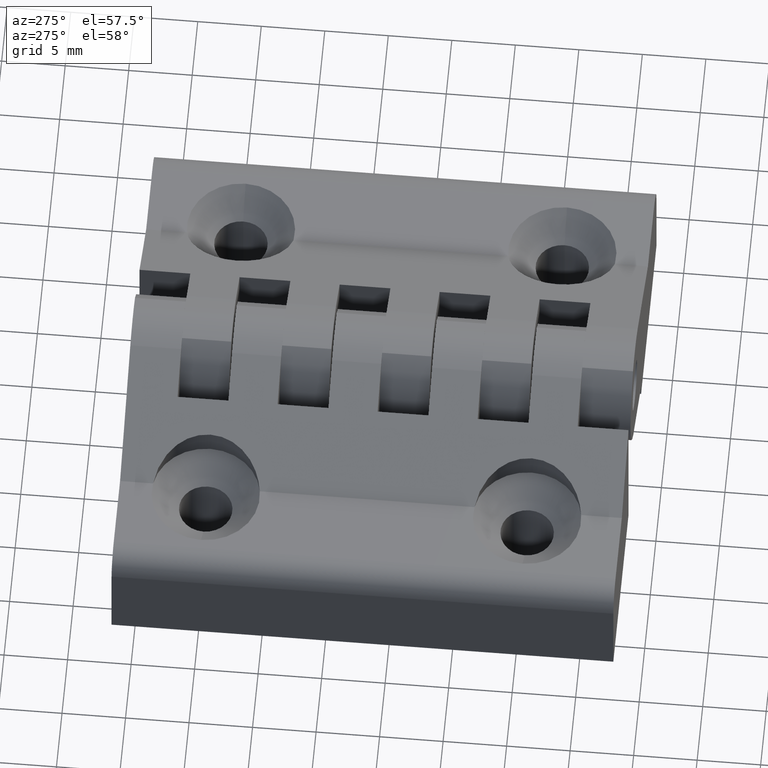
[diagram: clean part render]
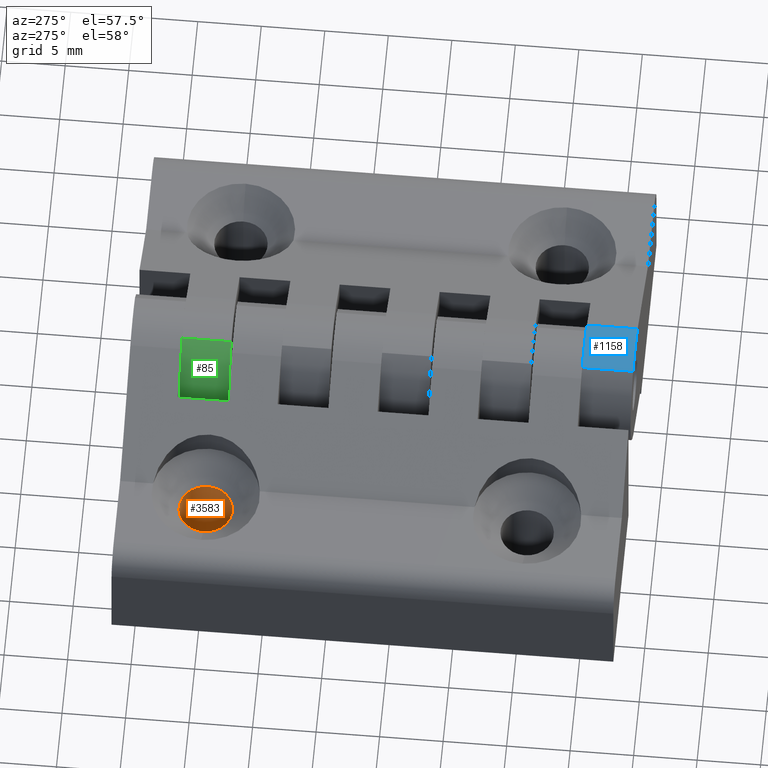
[diagram: same view with three faces highlighted in distinct colors, each labeled with its STEP entity id]
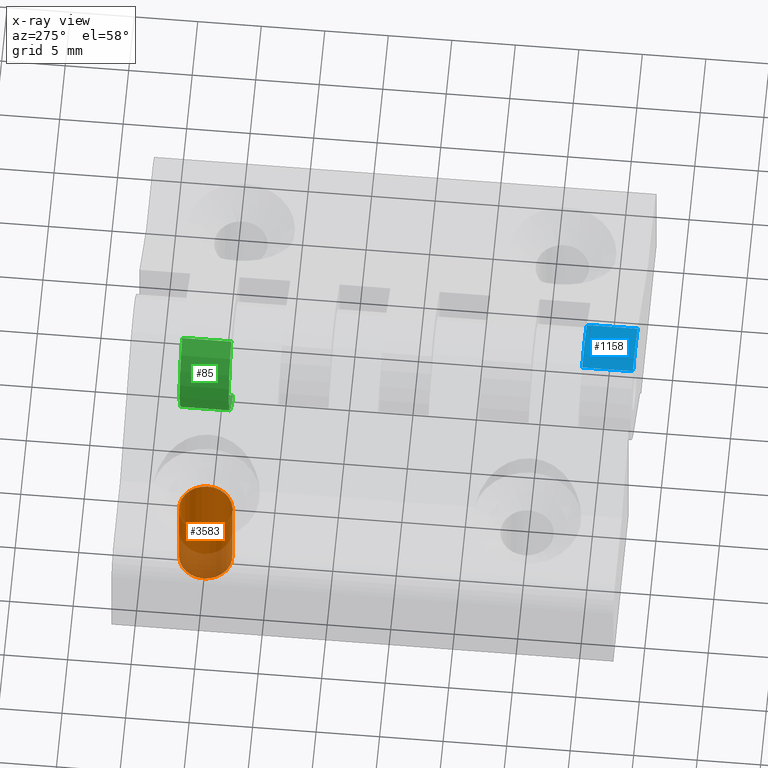
[diagram: x-ray of the same camera — body ghosted, the three highlighted faces saturated]
A machine part, auxiliary view with three faces highlighted in distinct colors.
The next image is the same camera in x-ray (body ghosted, the three faces saturated) — at least one of them is partly hidden behind the body in this view.
Their STEP definitions:

[orange] entity #3583 — the highlighted cylindrical surface (bore or boss wall) has radius 2.1 mm, axis along (0, -0, -1).
#2574=CARTESIAN_POINT('',(-2.099999999991582,0.0,0.0));
#2575=VERTEX_POINT('',#2574);
#2576=CARTESIAN_POINT('',(2.099999999991582,-2.571758E-016,1.574748E-032));
#2577=VERTEX_POINT('',#2576);
#2578=CARTESIAN_POINT('',(0.0,0.0,0.0));
#2579=DIRECTION('',(0.0,6.123234E-017,1.0));
#2580=DIRECTION('',(-1.0,1.224647E-016,-7.498799E-033));
#2581=AXIS2_PLACEMENT_3D('',#2578,#2579,#2580);
#2582=CIRCLE('',#2581,2.099999999991582);
#2583=EDGE_CURVE('',#2575,#2577,#2582,.T.);
#2585=CARTESIAN_POINT('',(0.0,0.0,0.0));
#2586=DIRECTION('',(0.0,6.123234E-017,1.0));
#2587=DIRECTION('',(-1.0,1.224647E-016,-7.498799E-033));
#2588=AXIS2_PLACEMENT_3D('',#2585,#2586,#2587);
#2589=CIRCLE('',#2588,2.099999999991582);
#2590=EDGE_CURVE('',#2577,#2575,#2589,.T.);
#3549=CARTESIAN_POINT('',(0.0,-1.321425E-016,-2.158050966487309));
#3550=DIRECTION('',(0.0,-6.123234E-017,-1.0));
#3551=DIRECTION('',(-1.0,1.224647E-016,-7.498799E-033));
#3552=AXIS2_PLACEMENT_3D('',#3549,#3550,#3551);
#3553=CYLINDRICAL_SURFACE('',#3552,2.099999999991582);
#3554=CARTESIAN_POINT('',(2.099999999991582,1.622657E-016,6.849999999972653));
#3555=VERTEX_POINT('',#3554);
#3556=CARTESIAN_POINT('',(-2.099999999991582,4.194415E-016,6.849999999972653));
#3557=VERTEX_POINT('',#3556);
#3558=CARTESIAN_POINT('',(0.0,4.194415E-016,6.849999999972653));
#3559=DIRECTION('',(0.0,-6.123234E-017,-1.0));
#3560=DIRECTION('',(-1.0,1.224647E-016,-7.498799E-033));
#3561=AXIS2_PLACEMENT_3D('',#3558,#3559,#3560);
#3562=CIRCLE('',#3561,2.099999999991582);
#3563=EDGE_CURVE('',#3555,#3557,#3562,.T.);
#3564=ORIENTED_EDGE('',*,*,#3563,.F.);
#3565=CARTESIAN_POINT('',(0.0,4.194415E-016,6.849999999972653));
#3566=DIRECTION('',(0.0,-6.123234E-017,-1.0));
#3567=DIRECTION('',(-1.0,1.224647E-016,-7.498799E-033));
#3568=AXIS2_PLACEMENT_3D('',#3565,#3566,#3567);
#3569=CIRCLE('',#3568,2.099999999991582);
#3570=EDGE_CURVE('',#3557,#3555,#3569,.T.);
#3571=ORIENTED_EDGE('',*,*,#3570,.F.);
#3572=CARTESIAN_POINT('',(-2.099999999991582,0.0,0.0));
#3573=DIRECTION('',(0.0,0.0,1.0));
#3574=VECTOR('',#3573,6.849999999972653);
#3575=LINE('',#3572,#3574);
#3576=EDGE_CURVE('',#2575,#3557,#3575,.T.);
#3577=ORIENTED_EDGE('',*,*,#3576,.F.);
#3578=ORIENTED_EDGE('',*,*,#2590,.F.);
#3579=ORIENTED_EDGE('',*,*,#2583,.F.);
#3580=ORIENTED_EDGE('',*,*,#3576,.T.);
#3581=EDGE_LOOP('',(#3564,#3571,#3577,#3578,#3579,#3580));
#3582=FACE_OUTER_BOUND('',#3581,.T.);
#3583=ADVANCED_FACE('',(#3582),#3553,.F.);

[blue] entity #1158 — the highlighted cylindrical surface (partial cylindrical patch) has radius 5 mm, axis along (0, -1, 0).
#175=CARTESIAN_POINT('',(10.700026787184100,-28.700000000027558,14.708801062030462));
#176=VERTEX_POINT('',#175);
#177=CARTESIAN_POINT('',(10.700026787184100,-32.700000000027558,14.708801062030462));
#178=VERTEX_POINT('',#177);
#179=CARTESIAN_POINT('',(10.700026787184100,-28.700000000027558,14.708801062030462));
#180=DIRECTION('',(0.0,-1.0,0.0));
#181=VECTOR('',#180,4.0);
#182=LINE('',#179,#181);
#183=EDGE_CURVE('',#176,#178,#182,.T.);
#871=CARTESIAN_POINT('',(14.899999999940633,-28.700000000027558,14.336791218223029));
#872=VERTEX_POINT('',#871);
#879=CARTESIAN_POINT('',(14.899999999940633,-32.700000000027558,14.336791218223029));
#880=VERTEX_POINT('',#879);
#881=CARTESIAN_POINT('',(14.899999999940633,-28.700000000027558,14.336791218223029));
#882=DIRECTION('',(0.0,-1.0,0.0));
#883=VECTOR('',#882,4.0);
#884=LINE('',#881,#883);
#885=EDGE_CURVE('',#872,#880,#884,.T.);
#1135=CARTESIAN_POINT('',(12.399999999950438,6.799999999814440,10.006664199318038));
#1136=DIRECTION('',(0.0,-1.0,6.123234E-017));
#1137=DIRECTION('',(0.500000000000019,5.302876E-017,0.866025403784428));
#1138=AXIS2_PLACEMENT_3D('',#1135,#1136,#1137);
#1139=CYLINDRICAL_SURFACE('',#1138,4.999999999980201);
#1140=CARTESIAN_POINT('',(12.399999999950438,-32.700000000027558,10.006664199318038));
#1141=DIRECTION('',(0.0,-1.0,6.123234E-017));
#1142=DIRECTION('',(0.500000000000019,5.302876E-017,0.866025403784428));
#1143=AXIS2_PLACEMENT_3D('',#1140,#1141,#1142);
#1144=CIRCLE('',#1143,4.999999999980201);
#1145=EDGE_CURVE('',#880,#178,#1144,.T.);
#1146=ORIENTED_EDGE('',*,*,#1145,.F.);
#1147=ORIENTED_EDGE('',*,*,#885,.F.);
#1148=CARTESIAN_POINT('',(12.399999999950438,-28.700000000027558,10.006664199318040));
#1149=DIRECTION('',(0.0,1.0,-6.123234E-017));
#1150=DIRECTION('',(0.500000000000019,5.302876E-017,0.866025403784428));
#1151=AXIS2_PLACEMENT_3D('',#1148,#1149,#1150);
#1152=CIRCLE('',#1151,4.999999999980201);
#1153=EDGE_CURVE('',#176,#872,#1152,.T.);
#1154=ORIENTED_EDGE('',*,*,#1153,.F.);
#1155=ORIENTED_EDGE('',*,*,#183,.T.);
#1156=EDGE_LOOP('',(#1146,#1147,#1154,#1155));
#1157=FACE_OUTER_BOUND('',#1156,.T.);
#1158=ADVANCED_FACE('',(#1157),#1139,.T.);

[green] entity #85 — the highlighted cylindrical surface (partial cylindrical patch) has radius 6.1228 mm, axis along (0, -1, 0).
#44=CARTESIAN_POINT('',(14.565363849789861,6.799999999814440,9.960308449534750));
#45=DIRECTION('',(0.0,-1.0,6.123234E-017));
#46=DIRECTION('',(-0.631299389615373,4.748808E-017,0.775539219299229));
#47=AXIS2_PLACEMENT_3D('',#44,#45,#46);
#48=CYLINDRICAL_SURFACE('',#47,6.122827181823769);
#49=CARTESIAN_POINT('',(12.399999999950438,2.799999999972443,4.233161507444947));
#50=VERTEX_POINT('',#49);
#51=CARTESIAN_POINT('',(12.399999999950438,-1.075000000027558,4.233161507444947));
#52=VERTEX_POINT('',#51);
#53=CARTESIAN_POINT('',(12.399999999950438,2.799999999972442,4.233161507444947));
#54=DIRECTION('',(0.0,-1.0,0.0));
#55=VECTOR('',#54,3.875000000000000);
#56=LINE('',#53,#55);
#57=EDGE_CURVE('',#50,#52,#56,.T.);
#58=ORIENTED_EDGE('',*,*,#57,.T.);
#59=CARTESIAN_POINT('',(10.700026787184100,-1.075000000027557,14.708801062030460));
#60=VERTEX_POINT('',#59);
#61=CARTESIAN_POINT('',(14.565363849789865,-1.075000000027558,9.960308449534752));
#62=DIRECTION('',(0.0,-1.000000000000000,6.123234E-017));
#63=DIRECTION('',(-0.631299389615373,4.748808E-017,0.775539219299229));
#64=AXIS2_PLACEMENT_3D('',#61,#62,#63);
#65=CIRCLE('',#64,6.122827181823769);
#66=EDGE_CURVE('',#60,#52,#65,.T.);
#67=ORIENTED_EDGE('',*,*,#66,.F.);
#68=CARTESIAN_POINT('',(10.700026787184100,2.799999999972443,14.708801062030460));
#69=VERTEX_POINT('',#68);
#70=CARTESIAN_POINT('',(10.700026787184100,2.799999999972443,14.708801062030460));
#71=DIRECTION('',(0.0,-1.0,0.0));
#72=VECTOR('',#71,3.875000000000000);
#73=LINE('',#70,#72);
#74=EDGE_CURVE('',#69,#60,#73,.T.);
#75=ORIENTED_EDGE('',*,*,#74,.F.);
#76=CARTESIAN_POINT('',(14.565363849789865,2.799999999972444,9.960308449534752));
#77=DIRECTION('',(0.0,1.000000000000000,-6.123234E-017));
#78=DIRECTION('',(-0.631299389615373,4.748808E-017,0.775539219299229));
#79=AXIS2_PLACEMENT_3D('',#76,#77,#78);
#80=CIRCLE('',#79,6.122827181823769);
#81=EDGE_CURVE('',#50,#69,#80,.T.);
#82=ORIENTED_EDGE('',*,*,#81,.F.);
#83=EDGE_LOOP('',(#58,#67,#75,#82));
#84=FACE_OUTER_BOUND('',#83,.T.);
#85=ADVANCED_FACE('',(#84),#48,.T.);